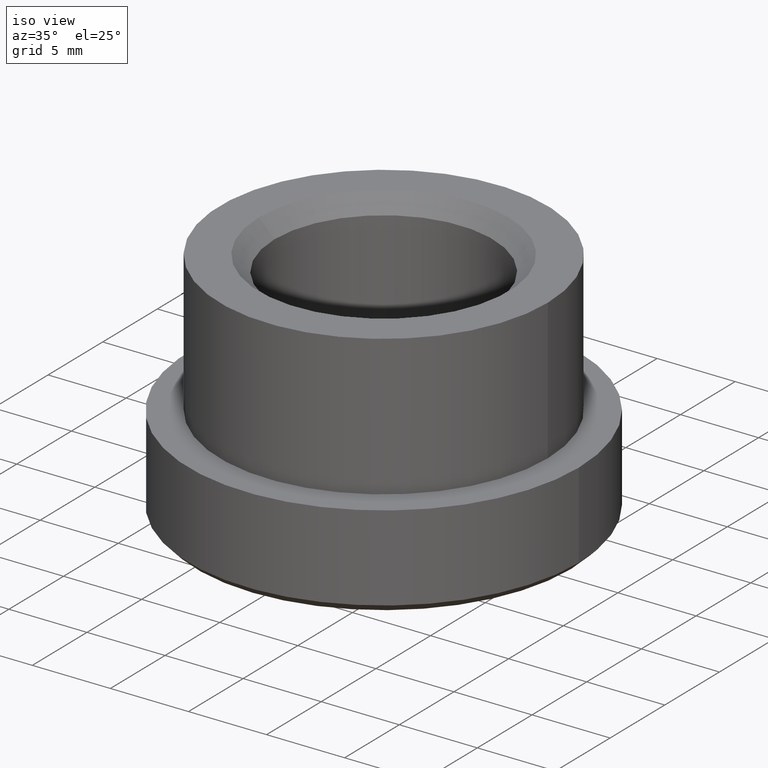
[diagram: clean part render]
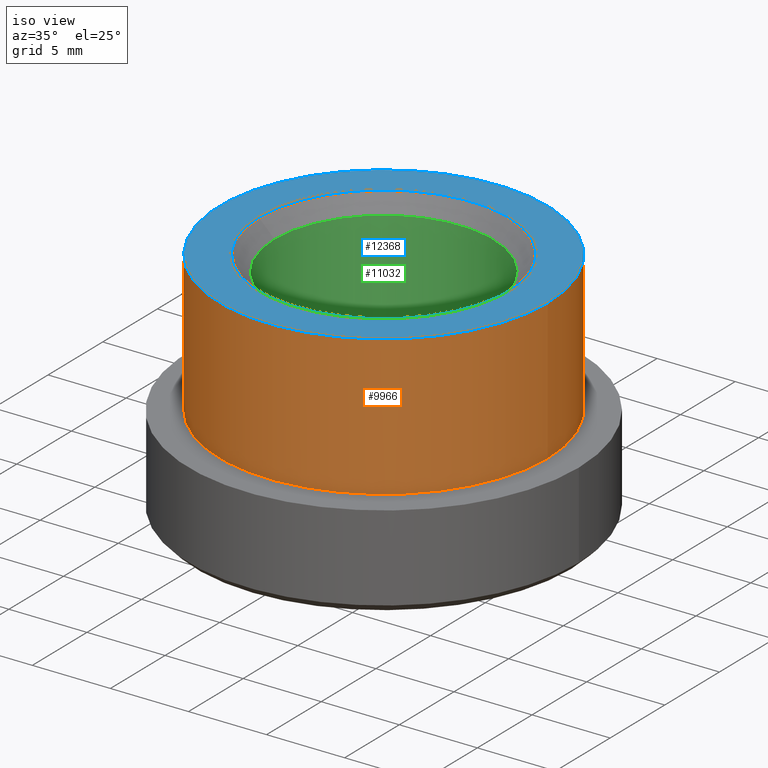
[diagram: same view with three faces highlighted in distinct colors, each labeled with its STEP entity id]
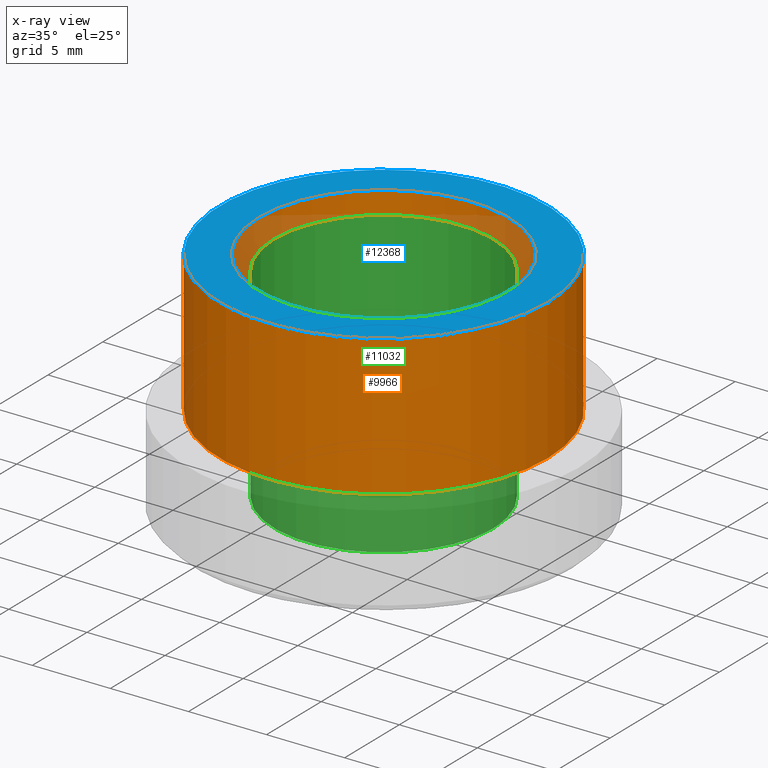
[diagram: x-ray of the same camera — body ghosted, the three highlighted faces saturated]
A machine part, iso view with three faces highlighted in distinct colors.
The next image is the same camera in x-ray (body ghosted, the three faces saturated) — at least one of them is partly hidden behind the body in this view.
Their STEP definitions:

[orange] entity #9966 — the highlighted cylindrical surface (bore or boss wall) has radius 10.5 mm, axis along (-0, -0, 1).
#653 = CARTESIAN_POINT ( 'NONE',  ( 0.000000000000000000, 0.000000000000000000, 7.500000000000000000 ) ) ;
#848 = CARTESIAN_POINT ( 'NONE',  ( 0.000000000000000000, 0.000000000000000000, 7.500000000000000000 ) ) ;
#1056 = ORIENTED_EDGE ( 'NONE', *, *, #11340, .F. ) ;
#1119 = EDGE_LOOP ( 'NONE', ( #1720 ) ) ;
#1283 = CIRCLE ( 'NONE', #5002, 10.50000000000000000 ) ;
#1500 = DIRECTION ( 'NONE',  ( 1.000000000000000000, 0.000000000000000000, 0.000000000000000000 ) ) ;
#1720 = ORIENTED_EDGE ( 'NONE', *, *, #8266, .T. ) ;
#2229 = VERTEX_POINT ( 'NONE', #12273 ) ;
#2870 = VERTEX_POINT ( 'NONE', #9229 ) ;
#3969 = DIRECTION ( 'NONE',  ( -0.000000000000000000, -0.000000000000000000, 1.000000000000000000 ) ) ;
#4041 = CIRCLE ( 'NONE', #6288, 10.50000000000000000 ) ;
#4982 = DIRECTION ( 'NONE',  ( 1.000000000000000000, 0.000000000000000000, 0.000000000000000000 ) ) ;
#5002 = AXIS2_PLACEMENT_3D ( 'NONE', #8811, #12926, #6835 ) ;
#6288 = AXIS2_PLACEMENT_3D ( 'NONE', #653, #9659, #1500 ) ;
#6334 = EDGE_LOOP ( 'NONE', ( #1056 ) ) ;
#6835 = DIRECTION ( 'NONE',  ( 1.000000000000000000, 0.000000000000000000, 0.000000000000000000 ) ) ;
#6907 = CYLINDRICAL_SURFACE ( 'NONE', #8592, 10.50000000000000000 ) ;
#8266 = EDGE_CURVE ( 'NONE', #2870, #2870, #1283, .T. ) ;
#8518 = FACE_OUTER_BOUND ( 'NONE', #6334, .T. ) ;
#8592 = AXIS2_PLACEMENT_3D ( 'NONE', #848, #3969, #4982 ) ;
#8811 = CARTESIAN_POINT ( 'NONE',  ( 0.000000000000000000, 0.000000000000000000, -1.499999999999999556 ) ) ;
#9229 = CARTESIAN_POINT ( 'NONE',  ( 10.50000000000000000, 0.000000000000000000, -1.499999999999999556 ) ) ;
#9659 = DIRECTION ( 'NONE',  ( -0.000000000000000000, -0.000000000000000000, 1.000000000000000000 ) ) ;
#9966 = ADVANCED_FACE ( 'NONE', ( #8518, #12483 ), #6907, .T. ) ;
#11340 = EDGE_CURVE ( 'NONE', #2229, #2229, #4041, .T. ) ;
#12273 = CARTESIAN_POINT ( 'NONE',  ( 10.50000000000000000, 0.000000000000000000, 7.500000000000000000 ) ) ;
#12483 = FACE_OUTER_BOUND ( 'NONE', #1119, .T. ) ;
#12926 = DIRECTION ( 'NONE',  ( -0.000000000000000000, -0.000000000000000000, 1.000000000000000000 ) ) ;

[blue] entity #12368 — the highlighted planar face has unit normal (0, 0, -1).
#19 = FACE_OUTER_BOUND ( 'NONE', #6306, .T. ) ;
#653 = CARTESIAN_POINT ( 'NONE',  ( 0.000000000000000000, 0.000000000000000000, 7.500000000000000000 ) ) ;
#1500 = DIRECTION ( 'NONE',  ( 1.000000000000000000, 0.000000000000000000, 0.000000000000000000 ) ) ;
#1985 = PLANE ( 'NONE',  #6174 ) ;
#2229 = VERTEX_POINT ( 'NONE', #12273 ) ;
#3099 = DIRECTION ( 'NONE',  ( -1.000000000000000000, 0.000000000000000000, -0.000000000000000000 ) ) ;
#3348 = VERTEX_POINT ( 'NONE', #4192 ) ;
#3615 = AXIS2_PLACEMENT_3D ( 'NONE', #12562, #8574, #4433 ) ;
#4041 = CIRCLE ( 'NONE', #6288, 10.50000000000000000 ) ;
#4192 = CARTESIAN_POINT ( 'NONE',  ( -7.999999999999996447, 0.000000000000000000, 7.500000000000000000 ) ) ;
#4433 = DIRECTION ( 'NONE',  ( -1.000000000000000000, 0.000000000000000000, 0.000000000000000000 ) ) ;
#4781 = EDGE_CURVE ( 'NONE', #3348, #3348, #6416, .T. ) ;
#5862 = EDGE_LOOP ( 'NONE', ( #12651 ) ) ;
#6075 = DIRECTION ( 'NONE',  ( 0.000000000000000000, 0.000000000000000000, -1.000000000000000000 ) ) ;
#6174 = AXIS2_PLACEMENT_3D ( 'NONE', #10277, #6075, #3099 ) ;
#6288 = AXIS2_PLACEMENT_3D ( 'NONE', #653, #9659, #1500 ) ;
#6306 = EDGE_LOOP ( 'NONE', ( #12825 ) ) ;
#6416 = CIRCLE ( 'NONE', #3615, 7.999999999999996447 ) ;
#8301 = FACE_BOUND ( 'NONE', #5862, .T. ) ;
#8574 = DIRECTION ( 'NONE',  ( 0.000000000000000000, 0.000000000000000000, -1.000000000000000000 ) ) ;
#9659 = DIRECTION ( 'NONE',  ( -0.000000000000000000, -0.000000000000000000, 1.000000000000000000 ) ) ;
#10277 = CARTESIAN_POINT ( 'NONE',  ( 0.000000000000000000, 4.999999999999999112, 7.500000000000000000 ) ) ;
#11340 = EDGE_CURVE ( 'NONE', #2229, #2229, #4041, .T. ) ;
#12273 = CARTESIAN_POINT ( 'NONE',  ( 10.50000000000000000, 0.000000000000000000, 7.500000000000000000 ) ) ;
#12368 = ADVANCED_FACE ( 'NONE', ( #8301, #19 ), #1985, .F. ) ;
#12562 = CARTESIAN_POINT ( 'NONE',  ( 0.000000000000000000, 0.000000000000000000, 7.500000000000000000 ) ) ;
#12651 = ORIENTED_EDGE ( 'NONE', *, *, #4781, .T. ) ;
#12825 = ORIENTED_EDGE ( 'NONE', *, *, #11340, .T. ) ;

[green] entity #11032 — the highlighted cylindrical surface (bore or boss wall) has radius 7 mm, axis along (-0, -0, 1).
#83 = CARTESIAN_POINT ( 'NONE',  ( 6.999999999999995559, 0.000000000000000000, -6.499999999999995559 ) ) ;
#295 = AXIS2_PLACEMENT_3D ( 'NONE', #7910, #8945, #9970 ) ;
#371 = AXIS2_PLACEMENT_3D ( 'NONE', #7173, #10080, #8021 ) ;
#829 = AXIS2_PLACEMENT_3D ( 'NONE', #11001, #10957, #8104 ) ;
#1331 = FACE_OUTER_BOUND ( 'NONE', #11907, .T. ) ;
#1787 = CIRCLE ( 'NONE', #295, 6.999999999999995559 ) ;
#2620 = FACE_OUTER_BOUND ( 'NONE', #9586, .T. ) ;
#3887 = CYLINDRICAL_SURFACE ( 'NONE', #829, 6.999999999999995559 ) ;
#4931 = ORIENTED_EDGE ( 'NONE', *, *, #6634, .T. ) ;
#5234 = ORIENTED_EDGE ( 'NONE', *, *, #7588, .T. ) ;
#6267 = CARTESIAN_POINT ( 'NONE',  ( -6.999999999999995559, 0.000000000000000000, 6.500000000000000000 ) ) ;
#6634 = EDGE_CURVE ( 'NONE', #8604, #8604, #1787, .T. ) ;
#7173 = CARTESIAN_POINT ( 'NONE',  ( 0.000000000000000000, 0.000000000000000000, -6.499999999999995559 ) ) ;
#7588 = EDGE_CURVE ( 'NONE', #11938, #11938, #12904, .T. ) ;
#7910 = CARTESIAN_POINT ( 'NONE',  ( 0.000000000000000000, 0.000000000000000000, 6.500000000000000000 ) ) ;
#8021 = DIRECTION ( 'NONE',  ( 1.000000000000000000, 0.000000000000000000, 0.000000000000000000 ) ) ;
#8104 = DIRECTION ( 'NONE',  ( 1.000000000000000000, 0.000000000000000000, 0.000000000000000000 ) ) ;
#8604 = VERTEX_POINT ( 'NONE', #6267 ) ;
#8945 = DIRECTION ( 'NONE',  ( 0.000000000000000000, 0.000000000000000000, 1.000000000000000000 ) ) ;
#9586 = EDGE_LOOP ( 'NONE', ( #4931 ) ) ;
#9970 = DIRECTION ( 'NONE',  ( -1.000000000000000000, 0.000000000000000000, 0.000000000000000000 ) ) ;
#10080 = DIRECTION ( 'NONE',  ( -0.000000000000000000, -0.000000000000000000, -1.000000000000000000 ) ) ;
#10957 = DIRECTION ( 'NONE',  ( -0.000000000000000000, -0.000000000000000000, 1.000000000000000000 ) ) ;
#11001 = CARTESIAN_POINT ( 'NONE',  ( 0.000000000000000000, 0.000000000000000000, 7.500000000000000000 ) ) ;
#11032 = ADVANCED_FACE ( 'NONE', ( #2620, #1331 ), #3887, .F. ) ;
#11907 = EDGE_LOOP ( 'NONE', ( #5234 ) ) ;
#11938 = VERTEX_POINT ( 'NONE', #83 ) ;
#12904 = CIRCLE ( 'NONE', #371, 6.999999999999995559 ) ;